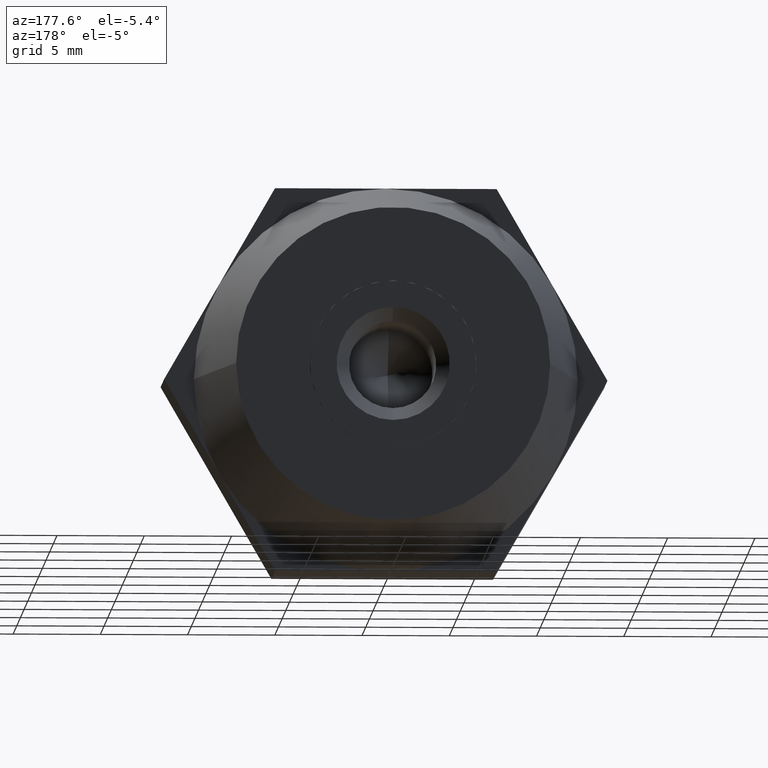
[diagram: clean part render]
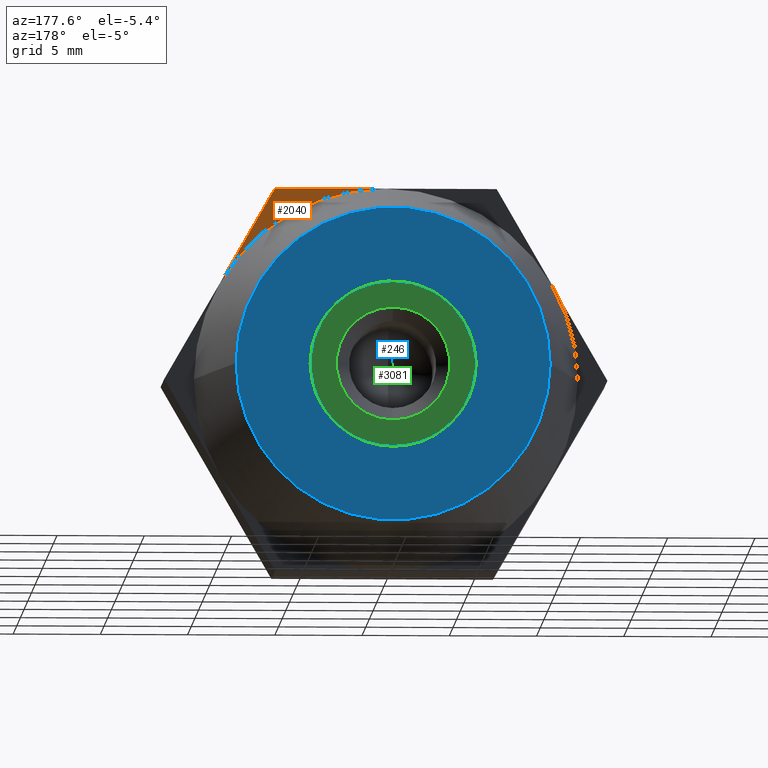
[diagram: same view with three faces highlighted in distinct colors, each labeled with its STEP entity id]
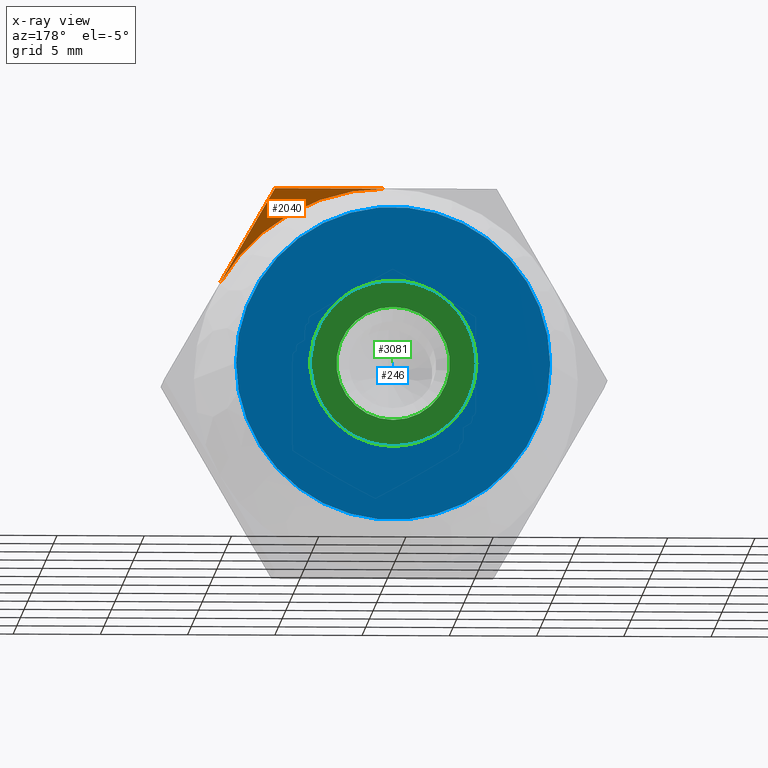
[diagram: x-ray of the same camera — body ghosted, the three highlighted faces saturated]
A machine part, auxiliary view with three faces highlighted in distinct colors.
The next image is the same camera in x-ray (body ghosted, the three faces saturated) — at least one of them is partly hidden behind the body in this view.
Their STEP definitions:

[orange] entity #2040 — the highlighted planar face has unit normal (0, 1, 0).
#93 = EDGE_CURVE ( 'NONE', #1073, #3298, #2018, .T. ) ;
#111 = CARTESIAN_POINT ( 'NONE',  ( 1.224646799147351900E-015, 2.500000000000000000, 0.0000000000000000000 ) ) ;
#169 = CARTESIAN_POINT ( 'NONE',  ( 9.526279441628831900, 2.500000000000000000, 5.500000000000000000 ) ) ;
#491 = DIRECTION ( 'NONE',  ( 1.000000000000000000, 0.0000000000000000000, 0.0000000000000000000 ) ) ;
#695 = DIRECTION ( 'NONE',  ( 0.0000000000000000000, 0.0000000000000000000, 1.000000000000000000 ) ) ;
#779 = VECTOR ( 'NONE', #3457, 1000.000000000000000 ) ;
#983 = CARTESIAN_POINT ( 'NONE',  ( -6.350852961085890600, 2.500000000000000000, 11.00000000000000000 ) ) ;
#1043 = CARTESIAN_POINT ( 'NONE',  ( 6.350852961085890600, 2.500000000000000000, 11.00000000000000000 ) ) ;
#1073 = VERTEX_POINT ( 'NONE', #1852 ) ;
#1154 = ORIENTED_EDGE ( 'NONE', *, *, #3640, .F. ) ;
#1315 = DIRECTION ( 'NONE',  ( -1.000000000000000000, -1.182766006347823100E-016, 0.0000000000000000000 ) ) ;
#1591 = CARTESIAN_POINT ( 'NONE',  ( 0.0000000000000000000, 2.500000000000000000, 0.0000000000000000000 ) ) ;
#1657 = LINE ( 'NONE', #983, #3010 ) ;
#1662 = FACE_OUTER_BOUND ( 'NONE', #2450, .T. ) ;
#1852 = CARTESIAN_POINT ( 'NONE',  ( 6.350852961085890600, 2.500000000000000000, 11.00000000000000000 ) ) ;
#1901 = DIRECTION ( 'NONE',  ( 0.0000000000000000000, 1.000000000000000000, 0.0000000000000000000 ) ) ;
#1938 = CARTESIAN_POINT ( 'NONE',  ( 1.925929944387235000E-031, 2.500000000000000000, 11.00000000000000000 ) ) ;
#1944 = PLANE ( 'NONE',  #2685 ) ;
#2018 = LINE ( 'NONE', #1043, #779 ) ;
#2040 = ADVANCED_FACE ( 'NONE', ( #1662 ), #1944, .T. ) ;
#2073 = ORIENTED_EDGE ( 'NONE', *, *, #2910, .T. ) ;
#2132 = CIRCLE ( 'NONE', #3842, 11.00000000000000000 ) ;
#2404 = VERTEX_POINT ( 'NONE', #1938 ) ;
#2450 = EDGE_LOOP ( 'NONE', ( #1154, #2073, #3679 ) ) ;
#2486 = DIRECTION ( 'NONE',  ( -1.224646799147352000E-016, 1.000000000000000000, 0.0000000000000000000 ) ) ;
#2685 = AXIS2_PLACEMENT_3D ( 'NONE', #1591, #1901, #695 ) ;
#2910 = EDGE_CURVE ( 'NONE', #2404, #1073, #1657, .T. ) ;
#3010 = VECTOR ( 'NONE', #491, 1000.000000000000000 ) ;
#3298 = VERTEX_POINT ( 'NONE', #169 ) ;
#3457 = DIRECTION ( 'NONE',  ( 0.4999999999999998900, 0.0000000000000000000, -0.8660254037844387100 ) ) ;
#3640 = EDGE_CURVE ( 'NONE', #2404, #3298, #2132, .T. ) ;
#3679 = ORIENTED_EDGE ( 'NONE', *, *, #93, .T. ) ;
#3842 = AXIS2_PLACEMENT_3D ( 'NONE', #111, #2486, #1315 ) ;

[blue] entity #246 — the highlighted planar face has unit normal (-0, 1, 0).
#101 = CARTESIAN_POINT ( 'NONE',  ( -5.844626848930769500E-016, 12.50000000000000000, 0.0000000000000000000 ) ) ;
#125 = DIRECTION ( 'NONE',  ( -1.000000000000000000, 0.0000000000000000000, 0.0000000000000000000 ) ) ;
#172 = CARTESIAN_POINT ( 'NONE',  ( -4.762500000000000200, 12.50000000000000000, 5.346820461647119800E-015 ) ) ;
#178 = PLANE ( 'NONE',  #3421 ) ;
#212 = CARTESIAN_POINT ( 'NONE',  ( 4.762500000000000200, 12.50000000000016000, 0.3087879531335430700 ) ) ;
#224 = ORIENTED_EDGE ( 'NONE', *, *, #3005, .T. ) ;
#225 = VECTOR ( 'NONE', #3188, 1000.000000000000000 ) ;
#246 = ADVANCED_FACE ( 'NONE', ( #510, #2065 ), #178, .T. ) ;
#366 = EDGE_CURVE ( 'NONE', #1239, #2122, #458, .T. ) ;
#417 = AXIS2_PLACEMENT_3D ( 'NONE', #555, #1751, #3284 ) ;
#458 = CIRCLE ( 'NONE', #1832, 4.772500000000000000 ) ;
#509 = ORIENTED_EDGE ( 'NONE', *, *, #2020, .T. ) ;
#510 = FACE_OUTER_BOUND ( 'NONE', #2935, .T. ) ;
#544 = CIRCLE ( 'NONE', #2813, 4.772500000000000000 ) ;
#552 = ORIENTED_EDGE ( 'NONE', *, *, #732, .T. ) ;
#555 = CARTESIAN_POINT ( 'NONE',  ( -1.349783804395671800E-031, 12.50000000000000000, 0.0000000000000000000 ) ) ;
#559 = DIRECTION ( 'NONE',  ( 1.224646799147352000E-016, -1.000000000000000000, -0.0000000000000000000 ) ) ;
#563 = AXIS2_PLACEMENT_3D ( 'NONE', #2653, #559, #848 ) ;
#578 = CARTESIAN_POINT ( 'NONE',  ( -2.113831788204199900, 12.50000000000000000, 4.278839962089945100 ) ) ;
#588 = VERTEX_POINT ( 'NONE', #3080 ) ;
#632 = ORIENTED_EDGE ( 'NONE', *, *, #3277, .T. ) ;
#644 = VERTEX_POINT ( 'NONE', #2785 ) ;
#670 = CARTESIAN_POINT ( 'NONE',  ( -4.762500000000000200, 12.50000000000000000, -0.3087879531329604800 ) ) ;
#672 = VECTOR ( 'NONE', #2863, 1000.000000000000100 ) ;
#722 = LINE ( 'NONE', #2884, #2345 ) ;
#732 = EDGE_CURVE ( 'NONE', #2487, #1741, #2151, .T. ) ;
#747 = DIRECTION ( 'NONE',  ( -1.000000000000000000, 0.0000000000000000000, 8.881784197001252300E-016 ) ) ;
#783 = EDGE_CURVE ( 'NONE', #2591, #1434, #2201, .T. ) ;
#799 = DIRECTION ( 'NONE',  ( 0.8660254037844387100, 1.060575238724905700E-016, 0.4999999999999998900 ) ) ;
#848 = DIRECTION ( 'NONE',  ( -1.000000000000000000, 0.0000000000000000000, 0.0000000000000000000 ) ) ;
#880 = DIRECTION ( 'NONE',  ( 1.224646799147352000E-016, -1.000000000000000000, -0.0000000000000000000 ) ) ;
#901 = CIRCLE ( 'NONE', #1953, 4.772500000000000000 ) ;
#944 = LINE ( 'NONE', #1971, #2042 ) ;
#957 = CIRCLE ( 'NONE', #3860, 9.000000000000000000 ) ;
#987 = ORIENTED_EDGE ( 'NONE', *, *, #1558, .T. ) ;
#1011 = VECTOR ( 'NONE', #1688, 1000.000000000000000 ) ;
#1032 = ORIENTED_EDGE ( 'NONE', *, *, #1322, .T. ) ;
#1069 = VERTEX_POINT ( 'NONE', #1212 ) ;
#1100 = ORIENTED_EDGE ( 'NONE', *, *, #3602, .T. ) ;
#1199 = ORIENTED_EDGE ( 'NONE', *, *, #3671, .T. ) ;
#1212 = CARTESIAN_POINT ( 'NONE',  ( 9.000000000000000000, 12.50000000000000200, 0.0000000000000000000 ) ) ;
#1214 = CARTESIAN_POINT ( 'NONE',  ( 2.648668211795634600, 12.50000000000000000, -3.970052008957025300 ) ) ;
#1239 = VERTEX_POINT ( 'NONE', #3511 ) ;
#1273 = DIRECTION ( 'NONE',  ( 1.224646799147352000E-016, -1.000000000000000000, -0.0000000000000000000 ) ) ;
#1322 = EDGE_CURVE ( 'NONE', #1463, #2591, #3338, .T. ) ;
#1405 = ORIENTED_EDGE ( 'NONE', *, *, #783, .T. ) ;
#1434 = VERTEX_POINT ( 'NONE', #670 ) ;
#1463 = VERTEX_POINT ( 'NONE', #3358 ) ;
#1468 = CIRCLE ( 'NONE', #2149, 4.772500000000000000 ) ;
#1508 = DIRECTION ( 'NONE',  ( 1.224646799147352000E-016, -1.000000000000000000, -0.0000000000000000000 ) ) ;
#1519 = VERTEX_POINT ( 'NONE', #1601 ) ;
#1524 = DIRECTION ( 'NONE',  ( -1.000000000000000000, 0.0000000000000000000, 0.0000000000000000000 ) ) ;
#1558 = EDGE_CURVE ( 'NONE', #1069, #1519, #957, .T. ) ;
#1586 = VERTEX_POINT ( 'NONE', #3725 ) ;
#1601 = CARTESIAN_POINT ( 'NONE',  ( -9.000000000000000000, 12.49999999999999800, 1.224646799147353300E-015 ) ) ;
#1638 = CARTESIAN_POINT ( 'NONE',  ( -9.000000000000000000, 12.50000000000000000, 0.0000000000000000000 ) ) ;
#1647 = DIRECTION ( 'NONE',  ( -0.8660254037844387100, -1.060575238724905700E-016, -0.4999999999999998900 ) ) ;
#1653 = CIRCLE ( 'NONE', #417, 9.000000000000000000 ) ;
#1688 = DIRECTION ( 'NONE',  ( 1.261786539621752000E-015, 1.545242846954995000E-031, -1.000000000000000000 ) ) ;
#1689 = CARTESIAN_POINT ( 'NONE',  ( -1.349783804395671800E-031, 12.50000000000000000, 0.0000000000000000000 ) ) ;
#1733 = EDGE_CURVE ( 'NONE', #3105, #1845, #2569, .T. ) ;
#1741 = VERTEX_POINT ( 'NONE', #212 ) ;
#1751 = DIRECTION ( 'NONE',  ( -1.224646799147352000E-016, 1.000000000000000000, 0.0000000000000000000 ) ) ;
#1758 = LINE ( 'NONE', #3186, #672 ) ;
#1794 = EDGE_CURVE ( 'NONE', #644, #3249, #544, .T. ) ;
#1824 = ORIENTED_EDGE ( 'NONE', *, *, #1794, .T. ) ;
#1832 = AXIS2_PLACEMENT_3D ( 'NONE', #3562, #3008, #3614 ) ;
#1845 = VERTEX_POINT ( 'NONE', #1214 ) ;
#1890 = AXIS2_PLACEMENT_3D ( 'NONE', #3827, #2023, #747 ) ;
#1953 = AXIS2_PLACEMENT_3D ( 'NONE', #101, #1273, #125 ) ;
#1961 = CARTESIAN_POINT ( 'NONE',  ( 4.762500000000000200, 12.50000000000000000, 0.0000000000000000000 ) ) ;
#1971 = CARTESIAN_POINT ( 'NONE',  ( -4.368750000000000400, 12.50000000000000000, 8.021560302553369900 ) ) ;
#2020 = EDGE_CURVE ( 'NONE', #1586, #644, #1758, .T. ) ;
#2023 = DIRECTION ( 'NONE',  ( 1.224646799147352000E-016, -1.000000000000000000, -0.0000000000000000000 ) ) ;
#2042 = VECTOR ( 'NONE', #3190, 1000.000000000000000 ) ;
#2065 = FACE_BOUND ( 'NONE', #3891, .T. ) ;
#2074 = CARTESIAN_POINT ( 'NONE',  ( -5.844626848930769500E-016, 12.50000000000000000, 0.0000000000000000000 ) ) ;
#2122 = VERTEX_POINT ( 'NONE', #578 ) ;
#2149 = AXIS2_PLACEMENT_3D ( 'NONE', #2074, #880, #2380 ) ;
#2151 = LINE ( 'NONE', #1961, #225 ) ;
#2185 = CIRCLE ( 'NONE', #563, 4.772500000000000000 ) ;
#2201 = LINE ( 'NONE', #172, #1011 ) ;
#2315 = EDGE_CURVE ( 'NONE', #2122, #1463, #722, .T. ) ;
#2345 = VECTOR ( 'NONE', #1647, 1000.000000000000000 ) ;
#2380 = DIRECTION ( 'NONE',  ( -1.000000000000000000, 0.0000000000000000000, 1.776356839400250500E-015 ) ) ;
#2487 = VERTEX_POINT ( 'NONE', #3785 ) ;
#2569 = LINE ( 'NONE', #3575, #3335 ) ;
#2574 = CARTESIAN_POINT ( 'NONE',  ( -2.022226441606597600E-030, 12.50000000000000000, -4.772500000000000000 ) ) ;
#2591 = VERTEX_POINT ( 'NONE', #2982 ) ;
#2642 = DIRECTION ( 'NONE',  ( 1.224646799147352000E-016, -1.000000000000000000, -0.0000000000000000000 ) ) ;
#2653 = CARTESIAN_POINT ( 'NONE',  ( -5.844626848930769500E-016, 12.50000000000000000, 0.0000000000000000000 ) ) ;
#2664 = ORIENTED_EDGE ( 'NONE', *, *, #366, .T. ) ;
#2691 = ORIENTED_EDGE ( 'NONE', *, *, #2315, .T. ) ;
#2785 = CARTESIAN_POINT ( 'NONE',  ( -2.113831788204365100, 12.50000000000000000, -4.278839962089860700 ) ) ;
#2813 = AXIS2_PLACEMENT_3D ( 'NONE', #3622, #1508, #1524 ) ;
#2857 = CIRCLE ( 'NONE', #3073, 4.772500000000000000 ) ;
#2863 = DIRECTION ( 'NONE',  ( 0.8660254037844383700, 1.060575238724906500E-016, -0.5000000000000003300 ) ) ;
#2884 = CARTESIAN_POINT ( 'NONE',  ( -9.131249999999999600, 12.50000000000000000, 0.2273316684934474900 ) ) ;
#2900 = DIRECTION ( 'NONE',  ( -1.224646799147352000E-016, 1.000000000000000000, 0.0000000000000000000 ) ) ;
#2925 = DIRECTION ( 'NONE',  ( -1.224646799147352000E-016, 1.000000000000000000, 0.0000000000000000000 ) ) ;
#2935 = EDGE_LOOP ( 'NONE', ( #987, #1100 ) ) ;
#2978 = ORIENTED_EDGE ( 'NONE', *, *, #3905, .T. ) ;
#2982 = CARTESIAN_POINT ( 'NONE',  ( -4.762500000000000200, 12.50000000000000000, 0.3087879531329485400 ) ) ;
#2986 = DIRECTION ( 'NONE',  ( -1.000000000000000000, 0.0000000000000000000, -8.881784197001252300E-016 ) ) ;
#3005 = EDGE_CURVE ( 'NONE', #1434, #1586, #2185, .T. ) ;
#3008 = DIRECTION ( 'NONE',  ( 1.224646799147352000E-016, -1.000000000000000000, -0.0000000000000000000 ) ) ;
#3073 = AXIS2_PLACEMENT_3D ( 'NONE', #3539, #2642, #2986 ) ;
#3080 = CARTESIAN_POINT ( 'NONE',  ( 2.648668211796129800, 12.50000000000000000, 3.970052008956699700 ) ) ;
#3105 = VERTEX_POINT ( 'NONE', #3433 ) ;
#3139 = DIRECTION ( 'NONE',  ( -1.000000000000000000, -1.224646799147352000E-016, 0.0000000000000000000 ) ) ;
#3186 = CARTESIAN_POINT ( 'NONE',  ( -9.131249999999999600, 12.50000000000000000, -0.2273316684934430000 ) ) ;
#3188 = DIRECTION ( 'NONE',  ( 0.0000000000000000000, 0.0000000000000000000, 1.000000000000000000 ) ) ;
#3190 = DIRECTION ( 'NONE',  ( -0.8660254037844387100, -1.060575238724907700E-016, 0.4999999999999998900 ) ) ;
#3223 = DIRECTION ( 'NONE',  ( -1.000000000000000000, -1.927470528863119000E-016, 0.0000000000000000000 ) ) ;
#3249 = VERTEX_POINT ( 'NONE', #2574 ) ;
#3277 = EDGE_CURVE ( 'NONE', #588, #1239, #944, .T. ) ;
#3284 = DIRECTION ( 'NONE',  ( -1.000000000000000000, -1.927470528863119000E-016, 0.0000000000000000000 ) ) ;
#3335 = VECTOR ( 'NONE', #799, 1000.000000000000000 ) ;
#3338 = CIRCLE ( 'NONE', #1890, 4.772500000000000000 ) ;
#3358 = CARTESIAN_POINT ( 'NONE',  ( -2.648668211795834900, 12.50000000000000000, 3.970052008956895100 ) ) ;
#3421 = AXIS2_PLACEMENT_3D ( 'NONE', #1638, #2900, #3139 ) ;
#3433 = CARTESIAN_POINT ( 'NONE',  ( 2.113831788204414900, 12.50000000000000000, -4.278839962089835000 ) ) ;
#3511 = CARTESIAN_POINT ( 'NONE',  ( 2.113831788203870000, 12.50000000000000000, 4.278839962090105000 ) ) ;
#3524 = ORIENTED_EDGE ( 'NONE', *, *, #1733, .T. ) ;
#3539 = CARTESIAN_POINT ( 'NONE',  ( -5.844626848930769500E-016, 12.50000000000000000, 0.0000000000000000000 ) ) ;
#3562 = CARTESIAN_POINT ( 'NONE',  ( -5.844626848930769500E-016, 12.50000000000000000, 0.0000000000000000000 ) ) ;
#3575 = CARTESIAN_POINT ( 'NONE',  ( -4.368750000000000400, 12.50000000000000000, -8.021560302553410800 ) ) ;
#3581 = EDGE_CURVE ( 'NONE', #1845, #2487, #2857, .T. ) ;
#3602 = EDGE_CURVE ( 'NONE', #1519, #1069, #1653, .T. ) ;
#3614 = DIRECTION ( 'NONE',  ( -1.000000000000000000, 0.0000000000000000000, 8.881784197001252300E-016 ) ) ;
#3622 = CARTESIAN_POINT ( 'NONE',  ( -5.844626848930769500E-016, 12.50000000000000000, 0.0000000000000000000 ) ) ;
#3630 = ORIENTED_EDGE ( 'NONE', *, *, #3581, .T. ) ;
#3671 = EDGE_CURVE ( 'NONE', #3249, #3105, #901, .T. ) ;
#3725 = CARTESIAN_POINT ( 'NONE',  ( -2.648668211795695000, 12.50000000000000000, -3.970052008956989700 ) ) ;
#3785 = CARTESIAN_POINT ( 'NONE',  ( 4.762500000000000200, 12.50000000000000000, -0.3087879531335145400 ) ) ;
#3827 = CARTESIAN_POINT ( 'NONE',  ( -5.844626848930769500E-016, 12.50000000000000000, 0.0000000000000000000 ) ) ;
#3860 = AXIS2_PLACEMENT_3D ( 'NONE', #1689, #2925, #3223 ) ;
#3891 = EDGE_LOOP ( 'NONE', ( #3524, #3630, #552, #2978, #632, #2664, #2691, #1032, #1405, #224, #509, #1824, #1199 ) ) ;
#3905 = EDGE_CURVE ( 'NONE', #1741, #588, #1468, .T. ) ;

[green] entity #3081 — the highlighted planar face has unit normal (0, 1, 0).
#10 = DIRECTION ( 'NONE',  ( 0.0000000000000000000, 0.0000000000000000000, 1.000000000000000000 ) ) ;
#122 = CIRCLE ( 'NONE', #3885, 4.762500000000000200 ) ;
#126 = ORIENTED_EDGE ( 'NONE', *, *, #1254, .F. ) ;
#132 = ORIENTED_EDGE ( 'NONE', *, *, #2650, .F. ) ;
#181 = DIRECTION ( 'NONE',  ( 0.0000000000000000000, 0.0000000000000000000, 1.000000000000000000 ) ) ;
#233 = EDGE_CURVE ( 'NONE', #2641, #3161, #3855, .T. ) ;
#258 = CARTESIAN_POINT ( 'NONE',  ( -4.762500000000000200, 8.000000000000000000, -6.009258394948640100E-015 ) ) ;
#284 = EDGE_CURVE ( 'NONE', #3161, #1620, #1157, .T. ) ;
#316 = ORIENTED_EDGE ( 'NONE', *, *, #2460, .F. ) ;
#349 = FACE_OUTER_BOUND ( 'NONE', #1296, .T. ) ;
#434 = CARTESIAN_POINT ( 'NONE',  ( -2.381250000000000100, 8.000000000000000000, 4.124445985523419900 ) ) ;
#441 = EDGE_CURVE ( 'NONE', #2351, #693, #2060, .T. ) ;
#604 = AXIS2_PLACEMENT_3D ( 'NONE', #2903, #1047, #181 ) ;
#615 = CARTESIAN_POINT ( 'NONE',  ( 0.0000000000000000000, 8.000000000000000000, 0.0000000000000000000 ) ) ;
#623 = DIRECTION ( 'NONE',  ( -0.0000000000000000000, -1.000000000000000000, -0.0000000000000000000 ) ) ;
#693 = VERTEX_POINT ( 'NONE', #1634 ) ;
#1034 = DIRECTION ( 'NONE',  ( -0.0000000000000000000, -1.000000000000000000, -0.0000000000000000000 ) ) ;
#1047 = DIRECTION ( 'NONE',  ( 0.0000000000000000000, 1.000000000000000000, 0.0000000000000000000 ) ) ;
#1080 = AXIS2_PLACEMENT_3D ( 'NONE', #2507, #3174, #1341 ) ;
#1157 = CIRCLE ( 'NONE', #2729, 4.762500000000000200 ) ;
#1170 = CARTESIAN_POINT ( 'NONE',  ( 3.980102097228897700E-016, 8.000000000000000000, -3.250000000000000000 ) ) ;
#1182 = CIRCLE ( 'NONE', #3747, 4.762500000000000200 ) ;
#1209 = DIRECTION ( 'NONE',  ( -0.0000000000000000000, -1.000000000000000000, -0.0000000000000000000 ) ) ;
#1220 = CARTESIAN_POINT ( 'NONE',  ( 0.0000000000000000000, 8.000000000000000000, 0.0000000000000000000 ) ) ;
#1254 = EDGE_CURVE ( 'NONE', #1857, #2990, #3519, .T. ) ;
#1296 = EDGE_LOOP ( 'NONE', ( #2327, #1849, #1433, #316, #2781, #1523, #2423 ) ) ;
#1341 = DIRECTION ( 'NONE',  ( 0.0000000000000000000, 0.0000000000000000000, 1.000000000000000000 ) ) ;
#1433 = ORIENTED_EDGE ( 'NONE', *, *, #3555, .F. ) ;
#1464 = CARTESIAN_POINT ( 'NONE',  ( 0.0000000000000000000, 8.000000000000000000, 0.0000000000000000000 ) ) ;
#1523 = ORIENTED_EDGE ( 'NONE', *, *, #2104, .F. ) ;
#1527 = CARTESIAN_POINT ( 'NONE',  ( 0.0000000000000000000, 8.000000000000000000, 0.0000000000000000000 ) ) ;
#1540 = DIRECTION ( 'NONE',  ( 0.0000000000000000000, 0.0000000000000000000, 1.000000000000000000 ) ) ;
#1584 = AXIS2_PLACEMENT_3D ( 'NONE', #2412, #623, #10 ) ;
#1620 = VERTEX_POINT ( 'NONE', #258 ) ;
#1634 = CARTESIAN_POINT ( 'NONE',  ( 2.381250000000025400, 8.000000000000000000, -4.124445985523429700 ) ) ;
#1719 = EDGE_LOOP ( 'NONE', ( #132, #126 ) ) ;
#1734 = DIRECTION ( 'NONE',  ( 0.0000000000000000000, 0.0000000000000000000, 1.000000000000000000 ) ) ;
#1801 = DIRECTION ( 'NONE',  ( -0.0000000000000000000, -1.000000000000000000, -0.0000000000000000000 ) ) ;
#1849 = ORIENTED_EDGE ( 'NONE', *, *, #233, .F. ) ;
#1857 = VERTEX_POINT ( 'NONE', #1170 ) ;
#1863 = AXIS2_PLACEMENT_3D ( 'NONE', #1527, #3623, #2137 ) ;
#1993 = CARTESIAN_POINT ( 'NONE',  ( 4.762500000000000200, 8.000000000000000000, 0.0000000000000000000 ) ) ;
#2060 = CIRCLE ( 'NONE', #2115, 4.762500000000000200 ) ;
#2104 = EDGE_CURVE ( 'NONE', #3808, #2351, #2142, .T. ) ;
#2115 = AXIS2_PLACEMENT_3D ( 'NONE', #1220, #1801, #1540 ) ;
#2128 = EDGE_CURVE ( 'NONE', #1620, #3808, #122, .T. ) ;
#2137 = DIRECTION ( 'NONE',  ( 0.0000000000000000000, 0.0000000000000000000, 1.000000000000000000 ) ) ;
#2142 = CIRCLE ( 'NONE', #1584, 4.762500000000000200 ) ;
#2189 = CIRCLE ( 'NONE', #2360, 4.762500000000000200 ) ;
#2241 = CARTESIAN_POINT ( 'NONE',  ( 0.0000000000000000000, 8.000000000000000000, -4.762500000000000200 ) ) ;
#2254 = AXIS2_PLACEMENT_3D ( 'NONE', #2858, #1034, #2285 ) ;
#2285 = DIRECTION ( 'NONE',  ( 0.0000000000000000000, 0.0000000000000000000, 1.000000000000000000 ) ) ;
#2327 = ORIENTED_EDGE ( 'NONE', *, *, #284, .F. ) ;
#2351 = VERTEX_POINT ( 'NONE', #2241 ) ;
#2353 = DIRECTION ( 'NONE',  ( -0.0000000000000000000, -1.000000000000000000, -0.0000000000000000000 ) ) ;
#2360 = AXIS2_PLACEMENT_3D ( 'NONE', #2926, #2639, #2909 ) ;
#2373 = CARTESIAN_POINT ( 'NONE',  ( 0.0000000000000000000, 8.000000000000000000, 3.250000000000000000 ) ) ;
#2412 = CARTESIAN_POINT ( 'NONE',  ( 0.0000000000000000000, 8.000000000000000000, 0.0000000000000000000 ) ) ;
#2423 = ORIENTED_EDGE ( 'NONE', *, *, #2128, .F. ) ;
#2460 = EDGE_CURVE ( 'NONE', #693, #3287, #2189, .T. ) ;
#2507 = CARTESIAN_POINT ( 'NONE',  ( 0.0000000000000000000, 8.000000000000000000, 0.0000000000000000000 ) ) ;
#2630 = CARTESIAN_POINT ( 'NONE',  ( 0.0000000000000000000, 8.000000000000000000, 0.0000000000000000000 ) ) ;
#2639 = DIRECTION ( 'NONE',  ( -0.0000000000000000000, -1.000000000000000000, -0.0000000000000000000 ) ) ;
#2641 = VERTEX_POINT ( 'NONE', #3841 ) ;
#2650 = EDGE_CURVE ( 'NONE', #2990, #1857, #3479, .T. ) ;
#2729 = AXIS2_PLACEMENT_3D ( 'NONE', #2630, #3552, #1734 ) ;
#2781 = ORIENTED_EDGE ( 'NONE', *, *, #441, .F. ) ;
#2858 = CARTESIAN_POINT ( 'NONE',  ( 0.0000000000000000000, 8.000000000000000000, 0.0000000000000000000 ) ) ;
#2903 = CARTESIAN_POINT ( 'NONE',  ( 0.0000000000000000000, 8.000000000000000000, 0.0000000000000000000 ) ) ;
#2909 = DIRECTION ( 'NONE',  ( 0.0000000000000000000, 0.0000000000000000000, 1.000000000000000000 ) ) ;
#2926 = CARTESIAN_POINT ( 'NONE',  ( 0.0000000000000000000, 8.000000000000000000, 0.0000000000000000000 ) ) ;
#2990 = VERTEX_POINT ( 'NONE', #2373 ) ;
#3081 = ADVANCED_FACE ( 'NONE', ( #349, #3838 ), #3741, .T. ) ;
#3161 = VERTEX_POINT ( 'NONE', #434 ) ;
#3174 = DIRECTION ( 'NONE',  ( 0.0000000000000000000, 1.000000000000000000, 0.0000000000000000000 ) ) ;
#3287 = VERTEX_POINT ( 'NONE', #1993 ) ;
#3349 = DIRECTION ( 'NONE',  ( 8.881784197001252300E-016, 0.0000000000000000000, 1.000000000000000000 ) ) ;
#3479 = CIRCLE ( 'NONE', #1863, 3.250000000000000000 ) ;
#3519 = CIRCLE ( 'NONE', #604, 3.250000000000000000 ) ;
#3551 = DIRECTION ( 'NONE',  ( -1.776356839400250500E-015, 0.0000000000000000000, 1.000000000000000000 ) ) ;
#3552 = DIRECTION ( 'NONE',  ( -0.0000000000000000000, -1.000000000000000000, -0.0000000000000000000 ) ) ;
#3555 = EDGE_CURVE ( 'NONE', #3287, #2641, #1182, .T. ) ;
#3587 = CARTESIAN_POINT ( 'NONE',  ( -2.381250000000029800, 8.000000000000000000, -4.124445985523424300 ) ) ;
#3623 = DIRECTION ( 'NONE',  ( 0.0000000000000000000, 1.000000000000000000, 0.0000000000000000000 ) ) ;
#3741 = PLANE ( 'NONE',  #1080 ) ;
#3747 = AXIS2_PLACEMENT_3D ( 'NONE', #1464, #2353, #3551 ) ;
#3808 = VERTEX_POINT ( 'NONE', #3587 ) ;
#3838 = FACE_BOUND ( 'NONE', #1719, .T. ) ;
#3841 = CARTESIAN_POINT ( 'NONE',  ( 2.381250000000000100, 8.000000000000000000, 4.124445985523399500 ) ) ;
#3855 = CIRCLE ( 'NONE', #2254, 4.762500000000000200 ) ;
#3885 = AXIS2_PLACEMENT_3D ( 'NONE', #615, #1209, #3349 ) ;